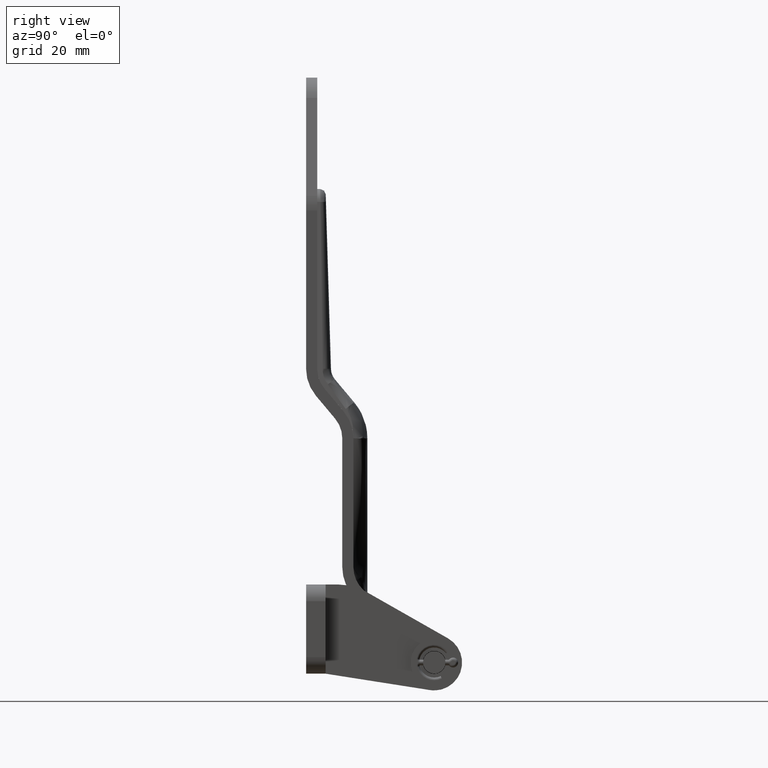
[diagram: clean part render]
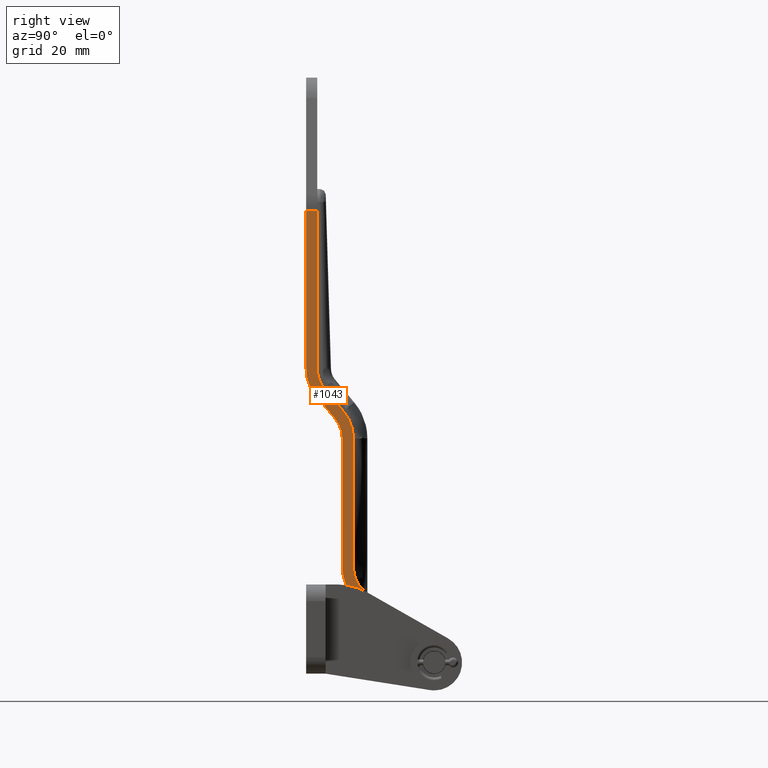
[diagram: same view with one face highlighted and labeled with its STEP entity id]
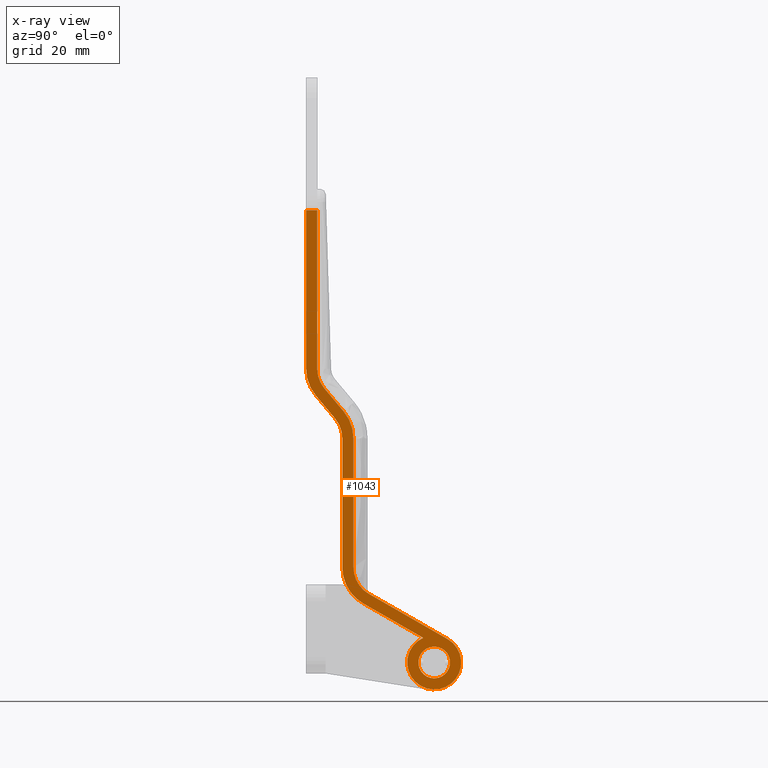
[diagram: x-ray of the same camera — body ghosted, the highlighted face saturated]
A machine part, right view. The second image highlights one B-rep face of the part: STEP entity #1043.
The next image is the same camera in x-ray: the body ghosted, the highlighted face saturated — about 0% of this face is hidden behind the body in this view.
In plain terms, the highlighted planar face has unit normal (1, 0, 0).
Its self-contained STEP definition (entity closure, byte-faithful):
#44 = VECTOR ( 'NONE', #2065, 1000.000000000000200 ) ;
#93 = AXIS2_PLACEMENT_3D ( 'NONE', #2360, #2361, #2362 ) ;
#105 = EDGE_CURVE ( 'NONE', #2589, #2976, #4177, .T. ) ;
#106 = EDGE_CURVE ( 'NONE', #2588, #2589, #4537, .T. ) ;
#107 = EDGE_CURVE ( 'NONE', #2987, #2973, #4540, .T. ) ;
#120 = EDGE_CURVE ( 'NONE', #2587, #2588, #4179, .T. ) ;
#121 = EDGE_CURVE ( 'NONE', #2586, #2587, #1106, .T. ) ;
#122 = EDGE_CURVE ( 'NONE', #2585, #2586, #4180, .T. ) ;
#123 = EDGE_CURVE ( 'NONE', #2583, #2584, #4181, .T. ) ;
#124 = EDGE_CURVE ( 'NONE', #3020, #3032, #4182, .T. ) ;
#125 = EDGE_CURVE ( 'NONE', #2584, #2585, #1117, .T. ) ;
#132 = EDGE_CURVE ( 'NONE', #2993, #2590, #4183, .T. ) ;
#133 = EDGE_CURVE ( 'NONE', #2590, #2591, #1144, .T. ) ;
#248 = AXIS2_PLACEMENT_3D ( 'NONE', #2002, #2006, #2007 ) ;
#254 = VECTOR ( 'NONE', #2017, 1000.000000000000000 ) ;
#259 = AXIS2_PLACEMENT_3D ( 'NONE', #2008, #2018, #2019 ) ;
#434 = CARTESIAN_POINT ( 'NONE',  ( 30.00000000000000000, -3.971992424103983200, 8.849478865044005700 ) ) ;
#435 = CARTESIAN_POINT ( 'NONE',  ( 30.00000000000000000, 4.826326674345811100, 8.414069813859290600 ) ) ;
#436 = CARTESIAN_POINT ( 'NONE',  ( 30.00000000000000000, -23.47315396059834600, 24.64670649029747200 ) ) ;
#437 = CARTESIAN_POINT ( 'NONE',  ( 30.00000000000000000, -29.00000000000000400, 34.18843514518944500 ) ) ;
#438 = CARTESIAN_POINT ( 'NONE',  ( 30.00000000000000000, -29.00000000000001100, 80.49775295649362800 ) ) ;
#439 = CARTESIAN_POINT ( 'NONE',  ( 30.00000000000000000, -32.50712685311312100, 90.13693688614070300 ) ) ;
#440 = CARTESIAN_POINT ( 'NONE',  ( 30.00000000000000000, -39.42810697438373100, 98.38887472304027400 ) ) ;
#441 = CARTESIAN_POINT ( 'NONE',  ( 30.00000000000000000, -42.49287314688692200, 95.81842567513435000 ) ) ;
#442 = CARTESIAN_POINT ( 'NONE',  ( 30.00000000000000000, -35.57189302561629100, 87.56648783823479200 ) ) ;
#443 = CARTESIAN_POINT ( 'NONE',  ( 30.00000000000000000, -33.00000000000000700, 80.49775295649359900 ) ) ;
#444 = CARTESIAN_POINT ( 'NONE',  ( 30.00000000000000000, -33.00000000000000000, 34.18843514518945200 ) ) ;
#445 = CARTESIAN_POINT ( 'NONE',  ( 30.00000000000000000, -25.46339176445229700, 21.17698697942767400 ) ) ;
#458 = CARTESIAN_POINT ( 'NONE',  ( 30.00000000000000000, -42.00000000000001400, 162.2738332309223800 ) ) ;
#461 = CARTESIAN_POINT ( 'NONE',  ( 30.00000000000000000, -42.00000000000000700, 105.4576096047814400 ) ) ;
#472 = CARTESIAN_POINT ( 'NONE',  ( 30.00000000000000000, -46.00000000000002800, 162.2738332309223800 ) ) ;
#478 = CARTESIAN_POINT ( 'NONE',  ( 30.00000000000000000, -46.00000000000002100, 105.4576096047814100 ) ) ;
#505 = CARTESIAN_POINT ( 'NONE',  ( 30.00000000000000000, 6.980486755139913100E-016, -5.700000000000000200 ) ) ;
#517 = CARTESIAN_POINT ( 'NONE',  ( 30.00000000000000000, 0.0000000000000000000, 5.700000000000000200 ) ) ;
#666 = LINE ( 'NONE', #667, #4667 ) ;
#667 = CARTESIAN_POINT ( 'NONE',  ( 30.00000000000000000, -42.00000000000000700, 105.4576096047814400 ) ) ;
#668 = DIRECTION ( 'NONE',  ( 0.0000000000000000000, -1.327479480366768500E-016, 1.000000000000000000 ) ) ;
#740 = LINE ( 'NONE', #741, #4691 ) ;
#741 = CARTESIAN_POINT ( 'NONE',  ( 30.00000000000000000, -46.00000000000002100, 105.4576096047814100 ) ) ;
#742 = DIRECTION ( 'NONE',  ( -0.0000000000000000000, 6.637397401833840200E-017, -1.000000000000000000 ) ) ;
#1043 = ADVANCED_FACE ( 'NONE', ( #5181, #5167 ), #1431, .T. ) ;
#1078 = EDGE_CURVE ( 'NONE', #2593, #2594, #4206, .T. ) ;
#1081 = EDGE_CURVE ( 'NONE', #2592, #2593, #2015, .T. ) ;
#1082 = EDGE_CURVE ( 'NONE', #2591, #2592, #4208, .T. ) ;
#1097 = EDGE_CURVE ( 'NONE', #2594, #2583, #2063, .T. ) ;
#1104 = DIRECTION ( 'NONE',  ( 0.0000000000000000000, 0.0000000000000000000, -1.000000000000000000 ) ) ;
#1105 = CARTESIAN_POINT ( 'NONE',  ( 30.00000000000000000, -18.00000000000001100, 34.18843514518944500 ) ) ;
#1106 = LINE ( 'NONE', #1107, #5257 ) ;
#1107 = CARTESIAN_POINT ( 'NONE',  ( 30.00000000000000000, -29.00000000000000700, 34.18843514518944500 ) ) ;
#1108 = DIRECTION ( 'NONE',  ( 0.0000000000000000000, -7.491898209536389700E-017, 1.000000000000000000 ) ) ;
#1109 = DIRECTION ( 'NONE',  ( -1.000000000000000000, 0.0000000000000000000, 0.0000000000000000000 ) ) ;
#1110 = DIRECTION ( 'NONE',  ( 0.0000000000000000000, 0.0000000000000000000, 1.000000000000000000 ) ) ;
#1111 = CARTESIAN_POINT ( 'NONE',  ( 30.00000000000000000, 0.0000000000000000000, 0.0000000000000000000 ) ) ;
#1112 = DIRECTION ( 'NONE',  ( 1.000000000000000000, 0.0000000000000000000, 0.0000000000000000000 ) ) ;
#1113 = DIRECTION ( 'NONE',  ( 0.0000000000000000000, 0.0000000000000000000, -1.000000000000000000 ) ) ;
#1114 = CARTESIAN_POINT ( 'NONE',  ( 30.00000000000000000, 0.0000000000000000000, 0.0000000000000000000 ) ) ;
#1115 = DIRECTION ( 'NONE',  ( 1.000000000000000000, 0.0000000000000000000, 0.0000000000000000000 ) ) ;
#1116 = DIRECTION ( 'NONE',  ( 0.0000000000000000000, 0.0000000000000000000, -1.000000000000000000 ) ) ;
#1117 = LINE ( 'NONE', #1118, #5207 ) ;
#1118 = CARTESIAN_POINT ( 'NONE',  ( 30.00000000000000000, 4.826326674345811100, 8.414069813859290600 ) ) ;
#1119 = DIRECTION ( 'NONE',  ( 0.0000000000000000000, -0.8674298777174525000, 0.4975594509634856400 ) ) ;
#1140 = CARTESIAN_POINT ( 'NONE',  ( 30.00000000000000000, -31.00000000000001400, 105.4576096047814100 ) ) ;
#1141 = DIRECTION ( 'NONE',  ( 1.000000000000000000, 0.0000000000000000000, 0.0000000000000000000 ) ) ;
#1142 = DIRECTION ( 'NONE',  ( 0.0000000000000000000, 0.0000000000000000000, -1.000000000000000000 ) ) ;
#1144 = LINE ( 'NONE', #1145, #5234 ) ;
#1145 = CARTESIAN_POINT ( 'NONE',  ( 30.00000000000000000, -35.57189302561629100, 87.56648783823479200 ) ) ;
#1146 = DIRECTION ( 'NONE',  ( -0.0000000000000000000, 0.6426122619764720300, -0.7661915431257918500 ) ) ;
#1431 = PLANE ( 'NONE',  #5177 ) ;
#1432 = CARTESIAN_POINT ( 'NONE',  ( 30.00000000000000000, 0.0000000000000000000, 0.0000000000000000000 ) ) ;
#1433 = DIRECTION ( 'NONE',  ( 1.000000000000000000, 0.0000000000000000000, 0.0000000000000000000 ) ) ;
#1434 = DIRECTION ( 'NONE',  ( 0.0000000000000000000, 0.0000000000000000000, -1.000000000000000000 ) ) ;
#1855 = EDGE_CURVE ( 'NONE', #3032, #3020, #4230, .T. ) ;
#1925 = AXIS2_PLACEMENT_3D ( 'NONE', #4649, #4650, #1104 ) ;
#1931 = VECTOR ( 'NONE', #4539, 1000.000000000000200 ) ;
#1944 = AXIS2_PLACEMENT_3D ( 'NONE', #4531, #4535, #4536 ) ;
#1948 = AXIS2_PLACEMENT_3D ( 'NONE', #1111, #1112, #1113 ) ;
#1955 = AXIS2_PLACEMENT_3D ( 'NONE', #1105, #1109, #1110 ) ;
#1959 = VECTOR ( 'NONE', #4542, 1000.000000000000000 ) ;
#1962 = AXIS2_PLACEMENT_3D ( 'NONE', #1114, #1115, #1116 ) ;
#2002 = CARTESIAN_POINT ( 'NONE',  ( 30.00000000000000000, -18.00000000000001100, 34.18843514518945200 ) ) ;
#2006 = DIRECTION ( 'NONE',  ( 1.000000000000000000, 0.0000000000000000000, 0.0000000000000000000 ) ) ;
#2007 = DIRECTION ( 'NONE',  ( 0.0000000000000000000, 0.0000000000000000000, -1.000000000000000000 ) ) ;
#2008 = CARTESIAN_POINT ( 'NONE',  ( 30.00000000000000000, -44.00000000000002100, 80.49775295649359900 ) ) ;
#2015 = LINE ( 'NONE', #2016, #254 ) ;
#2016 = CARTESIAN_POINT ( 'NONE',  ( 30.00000000000000000, -33.00000000000000000, 34.18843514518945200 ) ) ;
#2017 = DIRECTION ( 'NONE',  ( -0.0000000000000000000, 1.498379641907279200E-016, -1.000000000000000000 ) ) ;
#2018 = DIRECTION ( 'NONE',  ( -1.000000000000000000, -0.0000000000000000000, -0.0000000000000000000 ) ) ;
#2019 = DIRECTION ( 'NONE',  ( 0.0000000000000000000, 0.0000000000000000000, -1.000000000000000000 ) ) ;
#2063 = LINE ( 'NONE', #2064, #44 ) ;
#2064 = CARTESIAN_POINT ( 'NONE',  ( 30.00000000000000000, -3.971992424103983200, 8.849478865044005700 ) ) ;
#2065 = DIRECTION ( 'NONE',  ( -0.0000000000000000000, 0.8674298777174525000, -0.4975594509634857500 ) ) ;
#2360 = CARTESIAN_POINT ( 'NONE',  ( 30.00000000000000000, 0.0000000000000000000, 0.0000000000000000000 ) ) ;
#2361 = DIRECTION ( 'NONE',  ( 1.000000000000000000, 0.0000000000000000000, 0.0000000000000000000 ) ) ;
#2362 = DIRECTION ( 'NONE',  ( 0.0000000000000000000, 0.0000000000000000000, -1.000000000000000000 ) ) ;
#2583 = VERTEX_POINT ( 'NONE', #434 ) ;
#2584 = VERTEX_POINT ( 'NONE', #435 ) ;
#2585 = VERTEX_POINT ( 'NONE', #436 ) ;
#2586 = VERTEX_POINT ( 'NONE', #437 ) ;
#2587 = VERTEX_POINT ( 'NONE', #438 ) ;
#2588 = VERTEX_POINT ( 'NONE', #439 ) ;
#2589 = VERTEX_POINT ( 'NONE', #440 ) ;
#2590 = VERTEX_POINT ( 'NONE', #441 ) ;
#2591 = VERTEX_POINT ( 'NONE', #442 ) ;
#2592 = VERTEX_POINT ( 'NONE', #443 ) ;
#2593 = VERTEX_POINT ( 'NONE', #444 ) ;
#2594 = VERTEX_POINT ( 'NONE', #445 ) ;
#2973 = VERTEX_POINT ( 'NONE', #458 ) ;
#2976 = VERTEX_POINT ( 'NONE', #461 ) ;
#2987 = VERTEX_POINT ( 'NONE', #472 ) ;
#2993 = VERTEX_POINT ( 'NONE', #478 ) ;
#3020 = VERTEX_POINT ( 'NONE', #505 ) ;
#3032 = VERTEX_POINT ( 'NONE', #517 ) ;
#3305 = EDGE_LOOP ( 'NONE', ( #3375, #3376 ) ) ;
#3306 = EDGE_LOOP ( 'NONE', ( #3377, #3379, #3378, #3380, #3381, #3382, #3383, #3384, #3385, #3386, #3387, #3389, #3388, #3390, #3391, #3392 ) ) ;
#3375 = ORIENTED_EDGE ( 'NONE', *, *, #1855, .F. ) ;
#3376 = ORIENTED_EDGE ( 'NONE', *, *, #124, .F. ) ;
#3377 = ORIENTED_EDGE ( 'NONE', *, *, #123, .T. ) ;
#3378 = ORIENTED_EDGE ( 'NONE', *, *, #122, .T. ) ;
#3379 = ORIENTED_EDGE ( 'NONE', *, *, #125, .T. ) ;
#3380 = ORIENTED_EDGE ( 'NONE', *, *, #121, .T. ) ;
#3381 = ORIENTED_EDGE ( 'NONE', *, *, #120, .T. ) ;
#3382 = ORIENTED_EDGE ( 'NONE', *, *, #106, .T. ) ;
#3383 = ORIENTED_EDGE ( 'NONE', *, *, #105, .T. ) ;
#3384 = ORIENTED_EDGE ( 'NONE', *, *, #4879, .T. ) ;
#3385 = ORIENTED_EDGE ( 'NONE', *, *, #107, .F. ) ;
#3386 = ORIENTED_EDGE ( 'NONE', *, *, #4904, .T. ) ;
#3387 = ORIENTED_EDGE ( 'NONE', *, *, #132, .T. ) ;
#3388 = ORIENTED_EDGE ( 'NONE', *, *, #1082, .T. ) ;
#3389 = ORIENTED_EDGE ( 'NONE', *, *, #133, .T. ) ;
#3390 = ORIENTED_EDGE ( 'NONE', *, *, #1081, .T. ) ;
#3391 = ORIENTED_EDGE ( 'NONE', *, *, #1078, .T. ) ;
#3392 = ORIENTED_EDGE ( 'NONE', *, *, #1097, .T. ) ;
#4177 = CIRCLE ( 'NONE', #1944, 10.99999999999999600 ) ;
#4179 = CIRCLE ( 'NONE', #1925, 15.00000000000001400 ) ;
#4180 = CIRCLE ( 'NONE', #1955, 10.99999999999999600 ) ;
#4181 = CIRCLE ( 'NONE', #1948, 9.700000000000001100 ) ;
#4182 = CIRCLE ( 'NONE', #1962, 5.700000000000000200 ) ;
#4183 = CIRCLE ( 'NONE', #5220, 15.00000000000000000 ) ;
#4206 = CIRCLE ( 'NONE', #248, 14.99999999999999300 ) ;
#4208 = CIRCLE ( 'NONE', #259, 11.00000000000001100 ) ;
#4230 = CIRCLE ( 'NONE', #93, 5.700000000000000200 ) ;
#4531 = CARTESIAN_POINT ( 'NONE',  ( 30.00000000000000000, -31.00000000000001100, 105.4576096047814400 ) ) ;
#4535 = DIRECTION ( 'NONE',  ( -1.000000000000000000, 0.0000000000000000000, 0.0000000000000000000 ) ) ;
#4536 = DIRECTION ( 'NONE',  ( 0.0000000000000000000, 0.0000000000000000000, 1.000000000000000000 ) ) ;
#4537 = LINE ( 'NONE', #4538, #1931 ) ;
#4538 = CARTESIAN_POINT ( 'NONE',  ( 30.00000000000000000, -32.50712685311311400, 90.13693688614070300 ) ) ;
#4539 = DIRECTION ( 'NONE',  ( 0.0000000000000000000, -0.6426122619764720300, 0.7661915431257918500 ) ) ;
#4540 = LINE ( 'NONE', #4541, #1959 ) ;
#4541 = CARTESIAN_POINT ( 'NONE',  ( 30.00000000000000000, -46.00000000000002800, 162.2738332309223800 ) ) ;
#4542 = DIRECTION ( 'NONE',  ( -0.0000000000000000000, 1.000000000000000000, -0.0000000000000000000 ) ) ;
#4649 = CARTESIAN_POINT ( 'NONE',  ( 30.00000000000000000, -44.00000000000002100, 80.49775295649362800 ) ) ;
#4650 = DIRECTION ( 'NONE',  ( 1.000000000000000000, 0.0000000000000000000, 0.0000000000000000000 ) ) ;
#4667 = VECTOR ( 'NONE', #668, 1000.000000000000000 ) ;
#4691 = VECTOR ( 'NONE', #742, 1000.000000000000000 ) ;
#4879 = EDGE_CURVE ( 'NONE', #2976, #2973, #666, .T. ) ;
#4904 = EDGE_CURVE ( 'NONE', #2987, #2993, #740, .T. ) ;
#5167 = FACE_OUTER_BOUND ( 'NONE', #3306, .T. ) ;
#5177 = AXIS2_PLACEMENT_3D ( 'NONE', #1432, #1433, #1434 ) ;
#5181 = FACE_BOUND ( 'NONE', #3305, .T. ) ;
#5207 = VECTOR ( 'NONE', #1119, 1000.000000000000100 ) ;
#5220 = AXIS2_PLACEMENT_3D ( 'NONE', #1140, #1141, #1142 ) ;
#5234 = VECTOR ( 'NONE', #1146, 1000.000000000000200 ) ;
#5257 = VECTOR ( 'NONE', #1108, 1000.000000000000000 ) ;